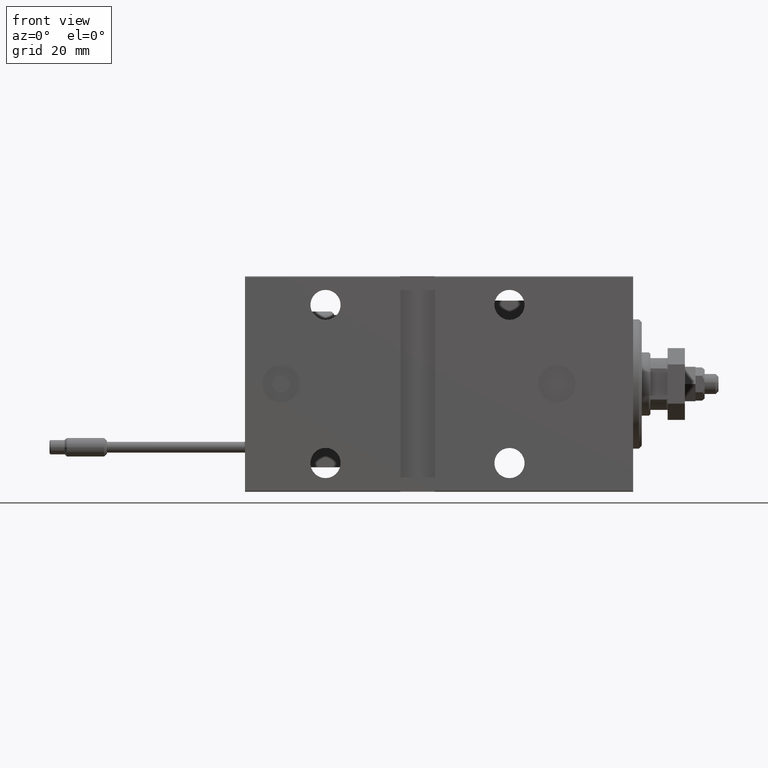
[diagram: clean part render]
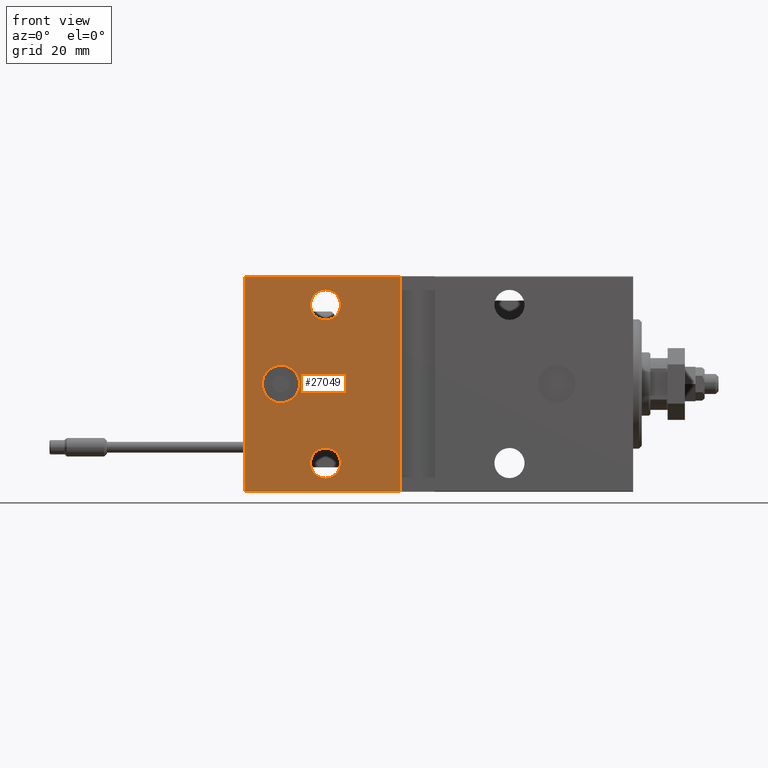
[diagram: same view with one face highlighted and labeled with its STEP entity id]
A machine part, front view. The second image highlights one B-rep face of the part: STEP entity #27049.
In plain terms, the highlighted planar face has unit normal (-0, 1, -0).
Its self-contained STEP definition (entity closure, byte-faithful):
#475 = CARTESIAN_POINT ( 'NONE',  ( 81.00000000000000000, 27.49999999999999645, 37.20000000000003126 ) ) ;
#754 = EDGE_CURVE ( 'NONE', #6691, #37112, #6755, .T. ) ;
#850 = CIRCLE ( 'NONE', #13798, 5.250000000000000888 ) ;
#1025 = CARTESIAN_POINT ( 'NONE',  ( 135.0000000000000000, 27.49999999999999645, 37.20000000000002416 ) ) ;
#1828 = ORIENTED_EDGE ( 'NONE', *, *, #754, .T. ) ;
#4355 = AXIS2_PLACEMENT_3D ( 'NONE', #15604, #31051, #46521 ) ;
#4504 = CARTESIAN_POINT ( 'NONE',  ( 107.0000000000000142, 27.49999999999999645, 32.74999999999999289 ) ) ;
#4594 = EDGE_CURVE ( 'NONE', #6691, #47358, #10384, .T. ) ;
#4874 = DIRECTION ( 'NONE',  ( 0.000000000000000000, 0.000000000000000000, 1.000000000000000000 ) ) ;
#5469 = VERTEX_POINT ( 'NONE', #24323 ) ;
#5579 = FACE_BOUND ( 'NONE', #32363, .T. ) ;
#5757 = VECTOR ( 'NONE', #23697, 1000.000000000000000 ) ;
#5845 = FACE_OUTER_BOUND ( 'NONE', #15174, .T. ) ;
#6439 = CIRCLE ( 'NONE', #20129, 5.250000000000004441 ) ;
#6633 = DIRECTION ( 'NONE',  ( 0.000000000000000000, 0.000000000000000000, -1.000000000000000000 ) ) ;
#6691 = VERTEX_POINT ( 'NONE', #20503 ) ;
#6755 = LINE ( 'NONE', #26475, #33052 ) ;
#6769 = ORIENTED_EDGE ( 'NONE', *, *, #4594, .F. ) ;
#7366 = ORIENTED_EDGE ( 'NONE', *, *, #49600, .T. ) ;
#7546 = CARTESIAN_POINT ( 'NONE',  ( 135.0000000000000000, 27.49999999999999645, 37.20000000000002416 ) ) ;
#7854 = CARTESIAN_POINT ( 'NONE',  ( 81.00000000000001421, 27.50000000000000355, -37.19999999999999574 ) ) ;
#10034 = VERTEX_POINT ( 'NONE', #26454 ) ;
#10384 = LINE ( 'NONE', #18697, #17034 ) ;
#10623 = DIRECTION ( 'NONE',  ( 0.000000000000000000, -1.000000000000000000, -9.251858538542970348E-17 ) ) ;
#12665 = CIRCLE ( 'NONE', #41008, 5.250000000000004441 ) ;
#13798 = AXIS2_PLACEMENT_3D ( 'NONE', #25618, #17280, #6633 ) ;
#13973 = VERTEX_POINT ( 'NONE', #29124 ) ;
#14201 = VERTEX_POINT ( 'NONE', #475 ) ;
#14347 = EDGE_CURVE ( 'NONE', #10034, #49254, #6439, .T. ) ;
#14607 = CARTESIAN_POINT ( 'NONE',  ( 107.0000000000000142, 27.49999999999999645, 27.49999999999999289 ) ) ;
#15084 = ORIENTED_EDGE ( 'NONE', *, *, #14347, .T. ) ;
#15174 = EDGE_LOOP ( 'NONE', ( #6769, #1828, #22769, #36508 ) ) ;
#15604 = CARTESIAN_POINT ( 'NONE',  ( 107.0000000000000142, 27.50000000000000355, -27.50000000000000711 ) ) ;
#17034 = VECTOR ( 'NONE', #45334, 1000.000000000000000 ) ;
#17280 = DIRECTION ( 'NONE',  ( 0.000000000000000000, -1.000000000000000000, -9.251858538542970348E-17 ) ) ;
#17473 = PLANE ( 'NONE',  #35811 ) ;
#17714 = ORIENTED_EDGE ( 'NONE', *, *, #28480, .T. ) ;
#17759 = CIRCLE ( 'NONE', #23397, 6.500000000000015099 ) ;
#17958 = DIRECTION ( 'NONE',  ( 0.000000000000000000, 0.000000000000000000, -1.000000000000000000 ) ) ;
#18697 = CARTESIAN_POINT ( 'NONE',  ( 135.0000000000000000, 27.50000000000000355, -37.50000000000000711 ) ) ;
#18772 = CARTESIAN_POINT ( 'NONE',  ( 122.5000000000000284, 27.50000000000000000, -6.500000000000012434 ) ) ;
#18864 = VERTEX_POINT ( 'NONE', #18772 ) ;
#20129 = AXIS2_PLACEMENT_3D ( 'NONE', #14607, #33604, #26749 ) ;
#20503 = CARTESIAN_POINT ( 'NONE',  ( 135.0000000000000000, 27.50000000000000355, -37.19999999999999574 ) ) ;
#20913 = VECTOR ( 'NONE', #42750, 1000.000000000000000 ) ;
#21001 = ORIENTED_EDGE ( 'NONE', *, *, #47938, .F. ) ;
#22047 = EDGE_CURVE ( 'NONE', #14201, #47358, #27508, .T. ) ;
#22456 = CIRCLE ( 'NONE', #45182, 6.500000000000015099 ) ;
#22721 = LINE ( 'NONE', #49606, #20913 ) ;
#22769 = ORIENTED_EDGE ( 'NONE', *, *, #45949, .F. ) ;
#23397 = AXIS2_PLACEMENT_3D ( 'NONE', #32219, #40093, #4874 ) ;
#23697 = DIRECTION ( 'NONE',  ( 1.000000000000000000, 0.000000000000000000, 0.000000000000000000 ) ) ;
#24323 = CARTESIAN_POINT ( 'NONE',  ( 122.5000000000000284, 27.50000000000000000, 6.500000000000017764 ) ) ;
#25311 = EDGE_LOOP ( 'NONE', ( #17714, #7366 ) ) ;
#25420 = DIRECTION ( 'NONE',  ( 2.465190328815661892E-32, 1.000000000000000000, 1.217002752883389755E-16 ) ) ;
#25564 = DIRECTION ( 'NONE',  ( 0.000000000000000000, 9.251858538542970348E-17, -1.000000000000000000 ) ) ;
#25618 = CARTESIAN_POINT ( 'NONE',  ( 107.0000000000000142, 27.50000000000000355, -27.50000000000000711 ) ) ;
#26149 = CARTESIAN_POINT ( 'NONE',  ( 122.5000000000000284, 27.50000000000000000, 2.544261098099316809E-15 ) ) ;
#26454 = CARTESIAN_POINT ( 'NONE',  ( 107.0000000000000142, 27.49999999999999645, 22.24999999999998934 ) ) ;
#26475 = CARTESIAN_POINT ( 'NONE',  ( 135.0000000000000000, 27.50000000000000355, -37.19999999999999574 ) ) ;
#26749 = DIRECTION ( 'NONE',  ( 0.000000000000000000, 0.000000000000000000, -1.000000000000000000 ) ) ;
#27049 = ADVANCED_FACE ( 'NONE', ( #5579, #36470, #29374, #5845 ), #17473, .F. ) ;
#27326 = ORIENTED_EDGE ( 'NONE', *, *, #39869, .T. ) ;
#27508 = LINE ( 'NONE', #7546, #5757 ) ;
#28480 = EDGE_CURVE ( 'NONE', #13973, #34414, #43211, .T. ) ;
#29124 = CARTESIAN_POINT ( 'NONE',  ( 107.0000000000000142, 27.50000000000000355, -22.25000000000000355 ) ) ;
#29374 = FACE_BOUND ( 'NONE', #43724, .T. ) ;
#31051 = DIRECTION ( 'NONE',  ( 0.000000000000000000, -1.000000000000000000, -9.251858538542970348E-17 ) ) ;
#32219 = CARTESIAN_POINT ( 'NONE',  ( 122.5000000000000284, 27.50000000000000000, 2.544261098099316809E-15 ) ) ;
#32363 = EDGE_LOOP ( 'NONE', ( #47613, #21001 ) ) ;
#32927 = CARTESIAN_POINT ( 'NONE',  ( 135.0000000000000000, 27.50000000000000355, -37.50000000000000711 ) ) ;
#33052 = VECTOR ( 'NONE', #34578, 1000.000000000000000 ) ;
#33604 = DIRECTION ( 'NONE',  ( 0.000000000000000000, -1.000000000000000000, -9.251858538542970348E-17 ) ) ;
#34414 = VERTEX_POINT ( 'NONE', #47524 ) ;
#34578 = DIRECTION ( 'NONE',  ( -1.000000000000000000, 0.000000000000000000, 0.000000000000000000 ) ) ;
#35811 = AXIS2_PLACEMENT_3D ( 'NONE', #32927, #44848, #25564 ) ;
#36470 = FACE_BOUND ( 'NONE', #25311, .T. ) ;
#36508 = ORIENTED_EDGE ( 'NONE', *, *, #22047, .T. ) ;
#37112 = VERTEX_POINT ( 'NONE', #7854 ) ;
#39869 = EDGE_CURVE ( 'NONE', #49254, #10034, #12665, .T. ) ;
#40093 = DIRECTION ( 'NONE',  ( 2.465190328815661892E-32, 1.000000000000000000, 1.217002752883389755E-16 ) ) ;
#41008 = AXIS2_PLACEMENT_3D ( 'NONE', #46064, #10623, #17958 ) ;
#42750 = DIRECTION ( 'NONE',  ( 1.850371707708591851E-16, 9.251858538542959255E-17, -1.000000000000000000 ) ) ;
#43211 = CIRCLE ( 'NONE', #4355, 5.250000000000000888 ) ;
#43724 = EDGE_LOOP ( 'NONE', ( #27326, #15084 ) ) ;
#44254 = EDGE_CURVE ( 'NONE', #5469, #18864, #22456, .T. ) ;
#44848 = DIRECTION ( 'NONE',  ( 0.000000000000000000, -1.000000000000000000, -9.251858538542970348E-17 ) ) ;
#44939 = DIRECTION ( 'NONE',  ( 0.000000000000000000, 0.000000000000000000, 1.000000000000000000 ) ) ;
#45182 = AXIS2_PLACEMENT_3D ( 'NONE', #26149, #25420, #44939 ) ;
#45334 = DIRECTION ( 'NONE',  ( 0.000000000000000000, -9.251858538542970348E-17, 1.000000000000000000 ) ) ;
#45949 = EDGE_CURVE ( 'NONE', #14201, #37112, #22721, .T. ) ;
#46064 = CARTESIAN_POINT ( 'NONE',  ( 107.0000000000000142, 27.49999999999999645, 27.49999999999999289 ) ) ;
#46521 = DIRECTION ( 'NONE',  ( 0.000000000000000000, 0.000000000000000000, -1.000000000000000000 ) ) ;
#47358 = VERTEX_POINT ( 'NONE', #1025 ) ;
#47524 = CARTESIAN_POINT ( 'NONE',  ( 107.0000000000000142, 27.50000000000000355, -32.75000000000000711 ) ) ;
#47613 = ORIENTED_EDGE ( 'NONE', *, *, #44254, .F. ) ;
#47938 = EDGE_CURVE ( 'NONE', #18864, #5469, #17759, .T. ) ;
#49254 = VERTEX_POINT ( 'NONE', #4504 ) ;
#49600 = EDGE_CURVE ( 'NONE', #34414, #13973, #850, .T. ) ;
#49606 = CARTESIAN_POINT ( 'NONE',  ( 81.00000000000001421, 27.50000000000000355, -37.50000000000009237 ) ) ;